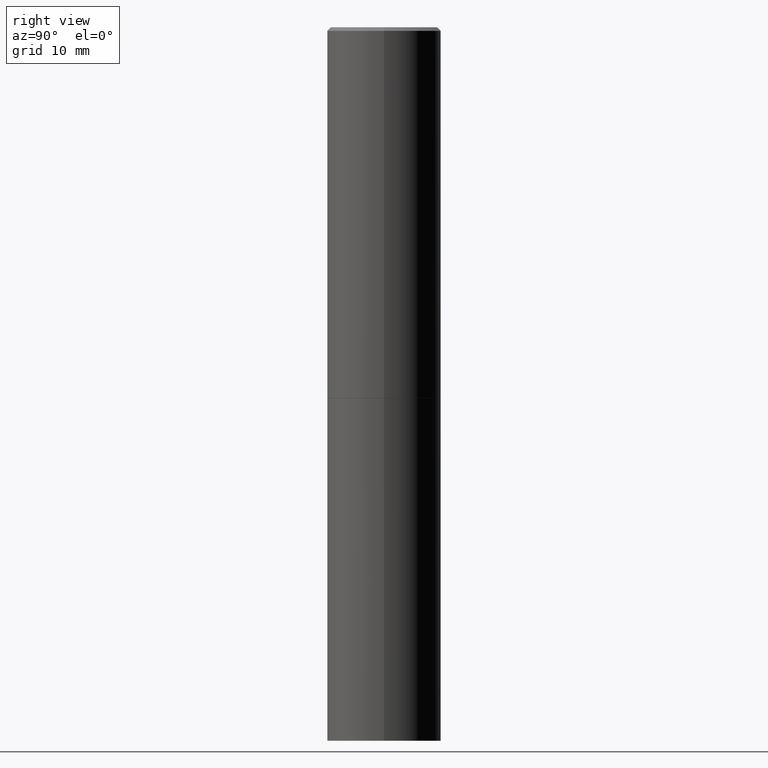
[diagram: clean part render]
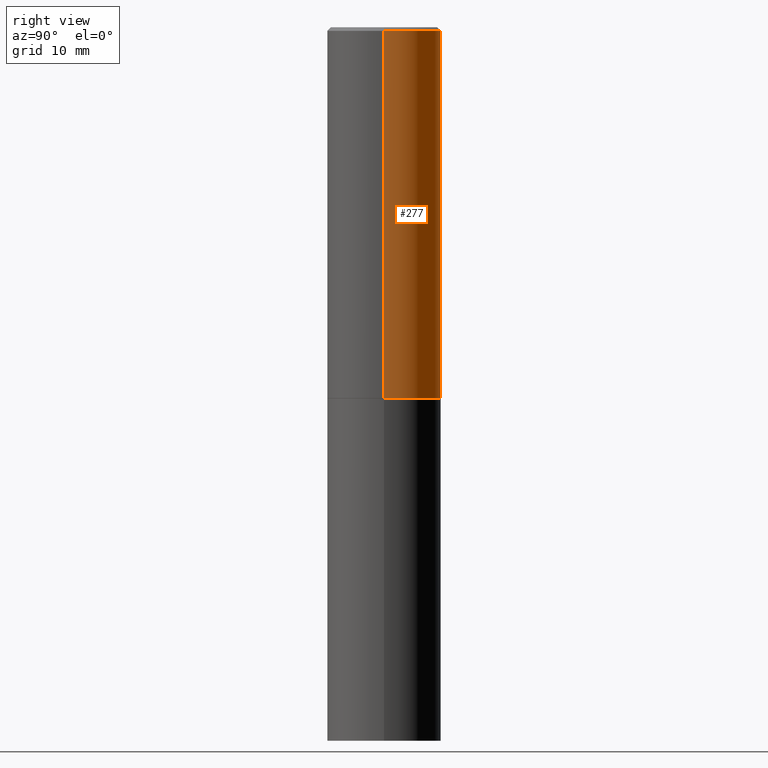
[diagram: same view with one face highlighted and labeled with its STEP entity id]
A machine part, right view. The second image highlights one B-rep face of the part: STEP entity #277.
In plain terms, the highlighted cylindrical surface (partial cylindrical patch) has radius 7.9997 mm, axis along (-0, 0, 1).
Its self-contained STEP definition (entity closure, byte-faithful):
#3 = DIRECTION ( 'NONE',  ( -2.445468806185136597E-29, 3.491481338843145583E-15, 1.000000000000000000 ) ) ;
#11 = VERTEX_POINT ( 'NONE', #112 ) ;
#13 = AXIS2_PLACEMENT_3D ( 'NONE', #114, #232, #338 ) ;
#31 = CARTESIAN_POINT ( 'NONE',  ( 0.000000000000000000, 0.000000000000000000, 0.000000000000000000 ) ) ;
#47 = LINE ( 'NONE', #332, #152 ) ;
#65 = DIRECTION ( 'NONE',  ( -2.445468806185136877E-29, 3.491481338843145188E-15, 1.000000000000000000 ) ) ;
#68 = AXIS2_PLACEMENT_3D ( 'NONE', #31, #281, #366 ) ;
#69 = AXIS2_PLACEMENT_3D ( 'NONE', #260, #3, #346 ) ;
#71 = FACE_OUTER_BOUND ( 'NONE', #175, .T. ) ;
#105 = ORIENTED_EDGE ( 'NONE', *, *, #270, .F. ) ;
#112 = CARTESIAN_POINT ( 'NONE',  ( 0.3149500000000000077, -9.343553210878133488E-15, -2.046199999999999797 ) ) ;
#114 = CARTESIAN_POINT ( 'NONE',  ( 5.003918271216025517E-29, -7.144269115540843617E-15, -2.046199999999999797 ) ) ;
#115 = VERTEX_POINT ( 'NONE', #214 ) ;
#127 = EDGE_CURVE ( 'NONE', #314, #115, #47, .T. ) ;
#152 = VECTOR ( 'NONE', #326, 39.37007874015748143 ) ;
#175 = EDGE_LOOP ( 'NONE', ( #268, #357, #183, #105 ) ) ;
#183 = ORIENTED_EDGE ( 'NONE', *, *, #289, .F. ) ;
#197 = LINE ( 'NONE', #225, #201 ) ;
#201 = VECTOR ( 'NONE', #65, 39.37007874015748143 ) ;
#214 = CARTESIAN_POINT ( 'NONE',  ( -0.3149499999999997302, 2.129454468560424601E-15, -0.02000000000000006981 ) ) ;
#225 = CARTESIAN_POINT ( 'NONE',  ( 0.3149499999999998967, -2.199284095337288688E-15, 1.535751875536929289E-29 ) ) ;
#232 = DIRECTION ( 'NONE',  ( -2.445468806185136597E-29, 3.491481338843145583E-15, 1.000000000000000000 ) ) ;
#260 = CARTESIAN_POINT ( 'NONE',  ( 4.890937612370289799E-31, -6.982962677686315028E-17, -0.02000000000000006981 ) ) ;
#267 = EDGE_CURVE ( 'NONE', #11, #314, #331, .T. ) ;
#268 = ORIENTED_EDGE ( 'NONE', *, *, #267, .T. ) ;
#270 = EDGE_CURVE ( 'NONE', #11, #343, #197, .T. ) ;
#277 = ADVANCED_FACE ( 'NONE', ( #71 ), #280, .T. ) ;
#280 = CYLINDRICAL_SURFACE ( 'NONE', #68, 0.3149499999999998967 ) ;
#281 = DIRECTION ( 'NONE',  ( -2.445468806185136597E-29, 3.491481338843145583E-15, 1.000000000000000000 ) ) ;
#289 = EDGE_CURVE ( 'NONE', #343, #115, #307, .T. ) ;
#307 = CIRCLE ( 'NONE', #69, 0.3149499999999997302 ) ;
#314 = VERTEX_POINT ( 'NONE', #321 ) ;
#318 = CARTESIAN_POINT ( 'NONE',  ( 0.3149499999999997302, -2.230543471175005478E-15, -0.02000000000000006981 ) ) ;
#321 = CARTESIAN_POINT ( 'NONE',  ( -0.3149500000000000077, -1.369195024882416092E-15, -2.046199999999999797 ) ) ;
#326 = DIRECTION ( 'NONE',  ( -2.445468806185136877E-29, 3.491481338843145188E-15, 1.000000000000000000 ) ) ;
#331 = CIRCLE ( 'NONE', #13, 0.3149500000000000077 ) ;
#332 = CARTESIAN_POINT ( 'NONE',  ( -0.3149499999999998967, 2.237854346276434801E-15, -1.549218606675782116E-29 ) ) ;
#338 = DIRECTION ( 'NONE',  ( 1.000000000000000000, -6.982962677686266711E-15, 0.000000000000000000 ) ) ;
#343 = VERTEX_POINT ( 'NONE', #318 ) ;
#346 = DIRECTION ( 'NONE',  ( 1.000000000000000000, -6.982962677686266711E-15, 0.000000000000000000 ) ) ;
#357 = ORIENTED_EDGE ( 'NONE', *, *, #127, .T. ) ;
#366 = DIRECTION ( 'NONE',  ( 1.000000000000000000, -6.982962677686265922E-15, 4.876176775795935232E-29 ) ) ;